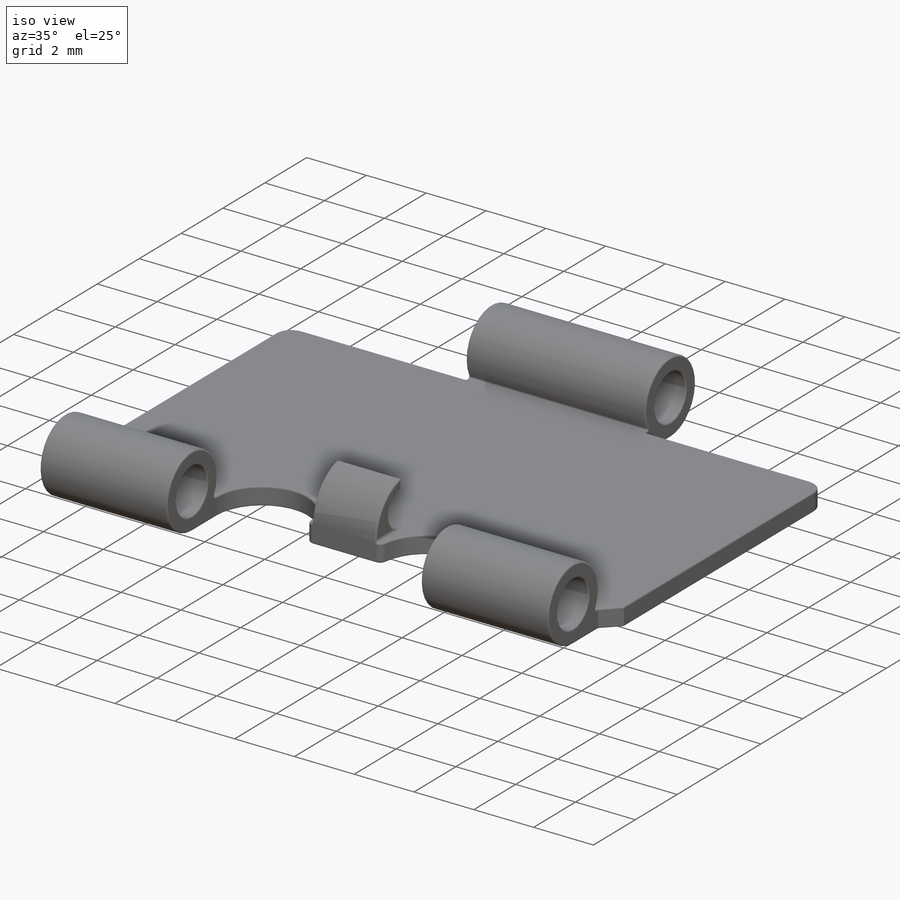
[diagram: iso view]
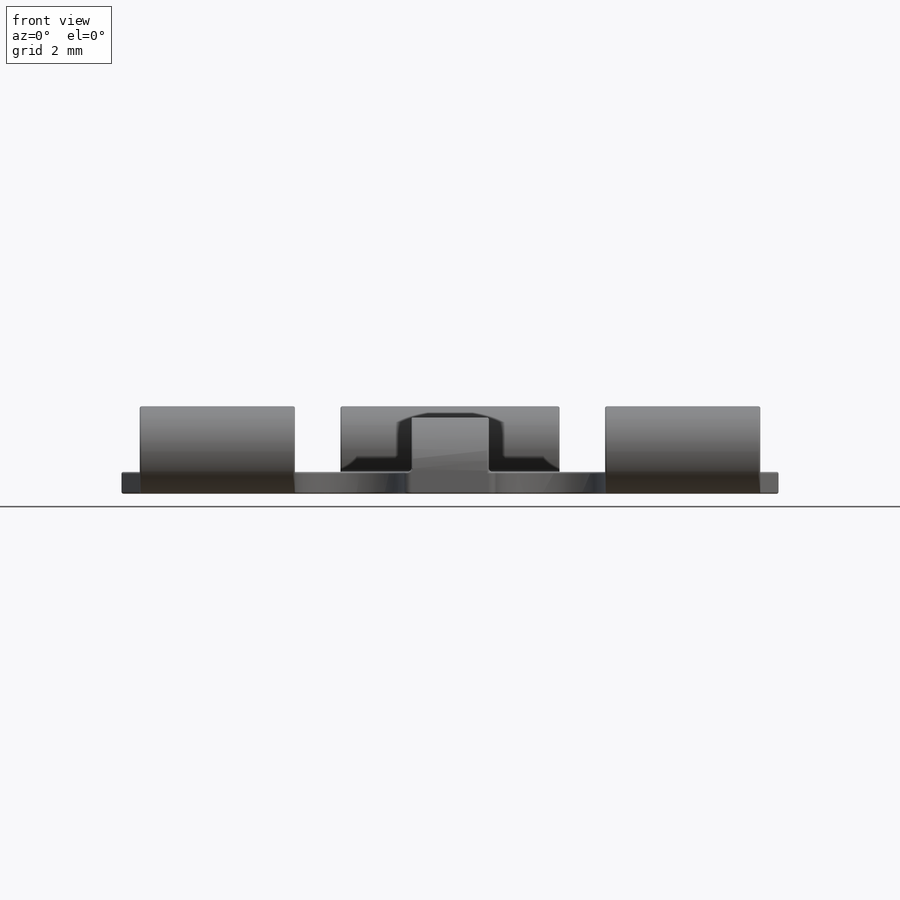
[diagram: front view]
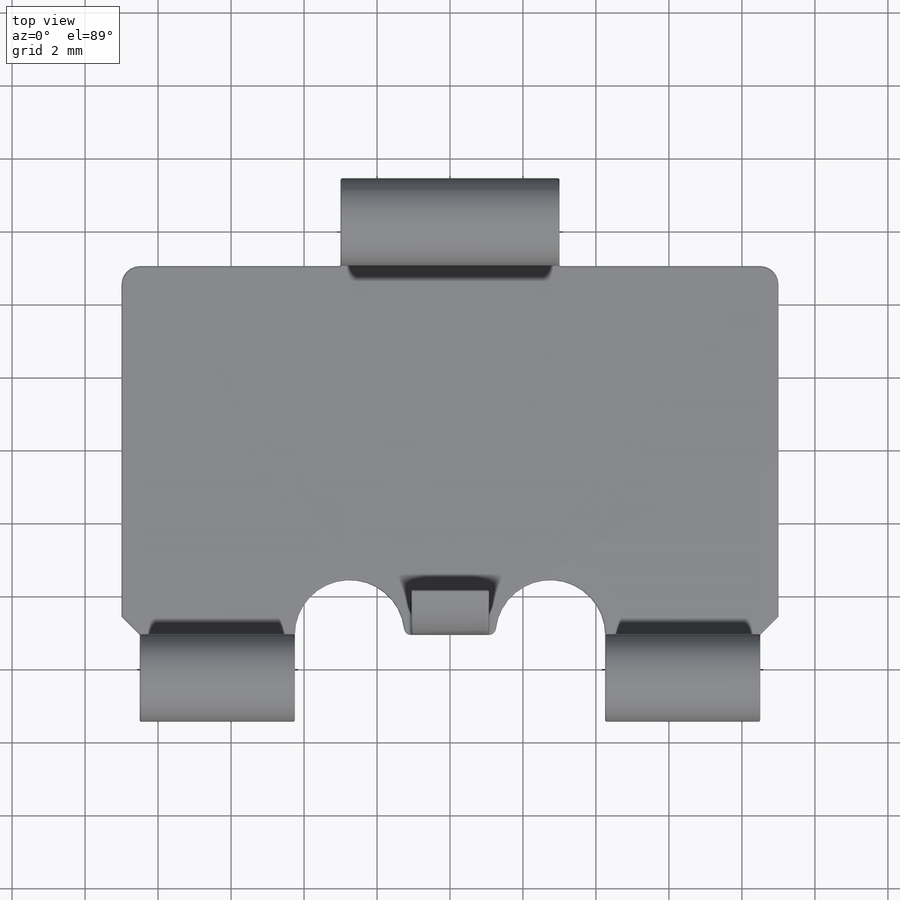
[diagram: top view]
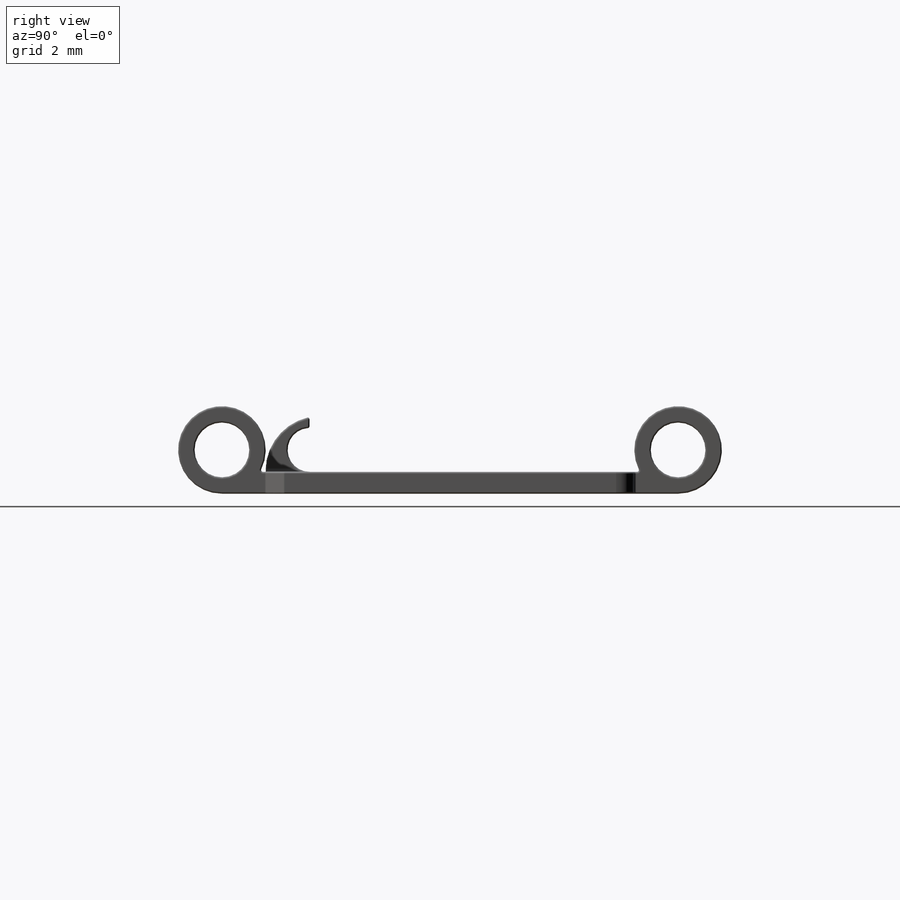
[diagram: right view]
SOLIDWORKS PART (.sldprt)
format: sldprt  version: not decoded by parser v0  size: 746,496 bytes
history: native  units: mm
features: sketch x8, fillet x7, cut_extrude x5, extrude x3, material x1, chamfer x1 (+11 scaffold rows collapsed)
feature tree (36):
  scaffold x11  (default folders/planes/origin — collapsed)
  material  "Material <not specified>"
  sketch  "Sketch1"  dims[D1=18.0mm D2=9.0mm D3=12.5mm D4=6.25mm]
  extrude  "Boss-Extrude1"  Depth=0.6mm
  sketch  "Sketch2"  dims[c1.D1=2.4mm c1.D2=2.4mm c1.D3=2.4mm c1.D4=2.4mm c1.D5=2.4mm c1.D6=2.4mm c2.D3=1.2mm c2.D4=1.2mm c2.D5=0.0mm c2.D6=0.0mm]
  extrude  "Boss-Extrude2"  Depth=18mm
  sketch  "Sketch3"  dims[D1=1.5mm D2=1.5mm]
  cut_extrude  "Cut-Extrude1"  Depth=18mm
  sketch  "Sketch5"  dims[D1=8.5mm D2=4.25mm D3=3.0mm D4=3.0mm D5=0.0mm D6=0.0mm D7=0.5mm D8=0.5mm]
  cut_extrude  "Cut-Extrude2"  Depth=21mm
  chamfer  "Chamfer1"  Distance=0.5mm Angle=45deg
  fillet  "Fillet3"  Radius=0.5mm
  sketch  "Sketch6"  dims[D1=1.5mm D2=1.5mm D3=0.0mm D4=0.0mm D5=0.0mm D6=0.0mm]
  cut_extrude  "Cut-Extrude3"  Depth=21mm
  fillet  "Fillet4"  Radius=0.2mm
  fillet  "Fillet5"  Radius=0.05mm
  sketch  "Sketch7"  dims[D1=1.2mm]
  extrude  "Boss-Extrude4"  Depth=1.5mm
  sketch  "Sketch8"  dims[D1=1.2mm D2=0.6mm]
  cut_extrude  "Cut-Extrude4"  Depth=12mm
  sketch  "Sketch9"  dims[D1=0.0mm D2=0.0mm]
  cut_extrude  "Cut-Extrude5"  [1 undecoded]
  fillet  "Fillet7"  Radius=1.5mm
  fillet  "Fillet8"  Radius=0.05mm
  fillet  "Fillet9"  Radius=0.1mm
  fillet  "Fillet10"  Radius=0.05mm
decode coverage: 23 of 24 modeling features carry decoded parameters
note: 1 parameter value undecoded
note: suppression state not decoded; provenance and decode notes live in map.json
